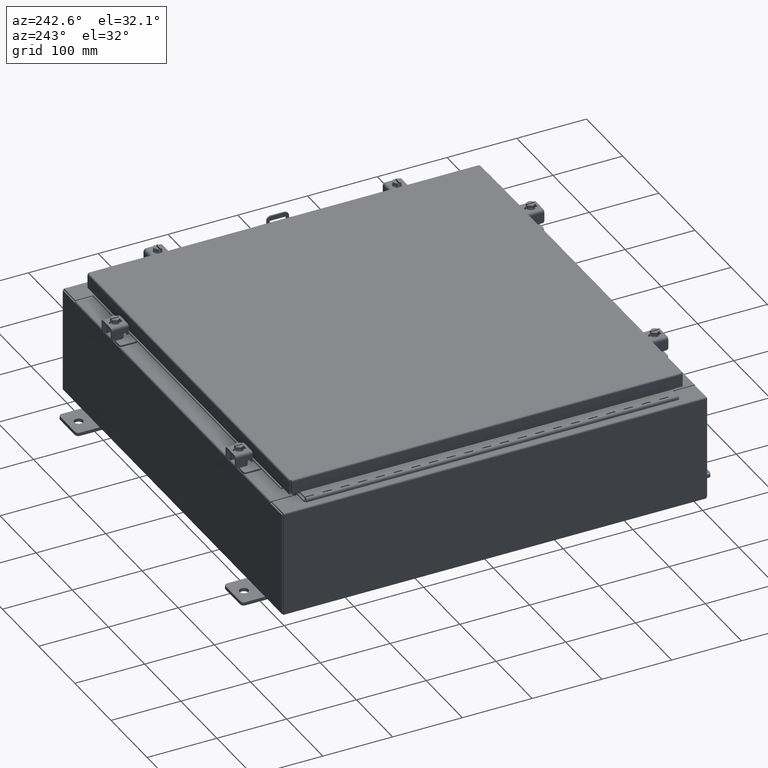
[diagram: clean part render]
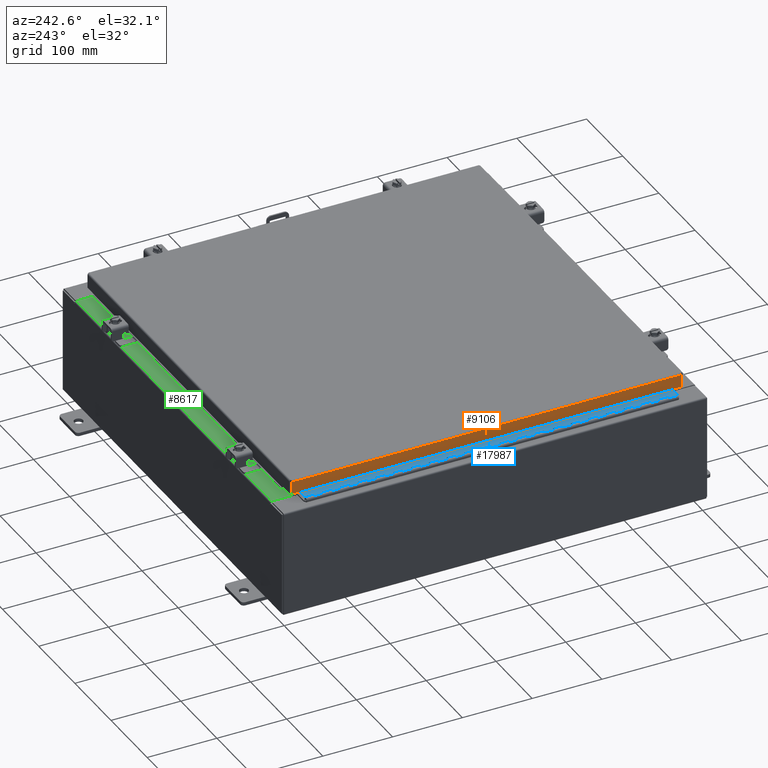
[diagram: same view with three faces highlighted in distinct colors, each labeled with its STEP entity id]
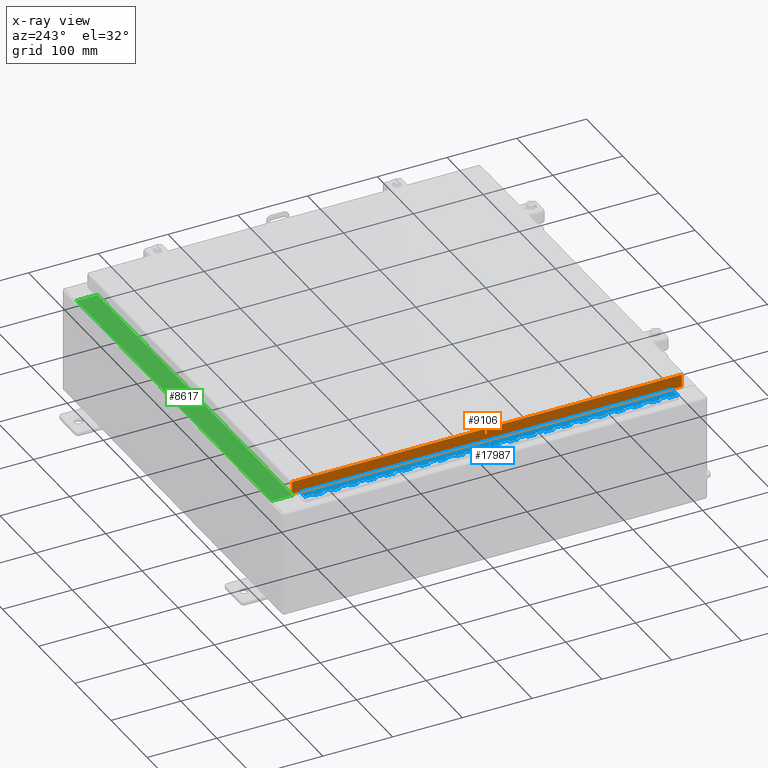
[diagram: x-ray of the same camera — body ghosted, the three highlighted faces saturated]
A machine part, auxiliary view with three faces highlighted in distinct colors.
The next image is the same camera in x-ray (body ghosted, the three faces saturated) — at least one of them is partly hidden behind the body in this view.
Their STEP definitions:

[orange] entity #9106 — the highlighted planar face has unit normal (1, 0, -0).
#335 = CARTESIAN_POINT ( 'NONE',  ( -11.07800000000000300, -11.00515786437627200, -0.08769999999999500400 ) ) ;
#999 = CARTESIAN_POINT ( 'NONE',  ( -11.07800000000000800, 11.00515786437626900, -0.7949999999999969300 ) ) ;
#1531 = CARTESIAN_POINT ( 'NONE',  ( -11.07800000000000300, -1.091163226025345200E-015, 6.748483047969663100E-014 ) ) ;
#1851 = DIRECTION ( 'NONE',  ( -6.068244883885633100E-015, 6.982962677686265900E-015, -1.000000000000000000 ) ) ;
#4026 = CARTESIAN_POINT ( 'NONE',  ( -11.07800000000000700, -11.00515786437626700, -0.7949999999999997100 ) ) ;
#5813 = DIRECTION ( 'NONE',  ( -9.849821502304897400E-017, 1.000000000000000000, 1.231227687788112100E-016 ) ) ;
#6281 = DIRECTION ( 'NONE',  ( -6.068244883885633100E-015, 6.982962677686265900E-015, -1.000000000000000000 ) ) ;
#8064 = DIRECTION ( 'NONE',  ( 9.849821502304913400E-017, -1.000000000000000000, -9.849821502304897400E-017 ) ) ;
#8558 = FACE_OUTER_BOUND ( 'NONE', #24076, .T. ) ;
#9106 = ADVANCED_FACE ( 'NONE', ( #8558 ), #19033, .F. ) ;
#10430 = CARTESIAN_POINT ( 'NONE',  ( -11.07800000000000300, 11.00515786437626400, 1.443334371086815900E-013 ) ) ;
#11580 = DIRECTION ( 'NONE',  ( -6.068244883885633100E-015, 0.0000000000000000000, -1.000000000000000000 ) ) ;
#13244 = ORIENTED_EDGE ( 'NONE', *, *, #17402, .F. ) ;
#13972 = VECTOR ( 'NONE', #1851, 39.37007874015748100 ) ;
#14180 = VECTOR ( 'NONE', #6281, 39.37007874015748100 ) ;
#14310 = VERTEX_POINT ( 'NONE', #15210 ) ;
#14610 = VERTEX_POINT ( 'NONE', #4026 ) ;
#15210 = CARTESIAN_POINT ( 'NONE',  ( -11.07800000000000500, 11.00515786437626400, -0.08769999999999764100 ) ) ;
#16645 = VERTEX_POINT ( 'NONE', #999 ) ;
#17077 = VERTEX_POINT ( 'NONE', #335 ) ;
#17402 = EDGE_CURVE ( 'NONE', #17077, #14610, #19856, .T. ) ;
#18306 = CARTESIAN_POINT ( 'NONE',  ( -11.07800000000000700, -11.09400000000000100, -0.7949999999999997100 ) ) ;
#18757 = LINE ( 'NONE', #18306, #31744 ) ;
#18768 = AXIS2_PLACEMENT_3D ( 'NONE', #1531, #26561, #11580 ) ;
#18994 = LINE ( 'NONE', #23048, #26416 ) ;
#19033 = PLANE ( 'NONE',  #18768 ) ;
#19561 = ORIENTED_EDGE ( 'NONE', *, *, #23461, .F. ) ;
#19856 = LINE ( 'NONE', #31950, #13972 ) ;
#20308 = ORIENTED_EDGE ( 'NONE', *, *, #27433, .F. ) ;
#23048 = CARTESIAN_POINT ( 'NONE',  ( -11.07800000000000300, -11.09400000000000100, -0.08769999999999982000 ) ) ;
#23461 = EDGE_CURVE ( 'NONE', #14310, #17077, #18994, .T. ) ;
#24076 = EDGE_LOOP ( 'NONE', ( #19561, #24638, #20308, #13244 ) ) ;
#24638 = ORIENTED_EDGE ( 'NONE', *, *, #25152, .T. ) ;
#25152 = EDGE_CURVE ( 'NONE', #14310, #16645, #28271, .T. ) ;
#26416 = VECTOR ( 'NONE', #8064, 39.37007874015748100 ) ;
#26561 = DIRECTION ( 'NONE',  ( 1.000000000000000000, 9.849821502304972600E-017, -6.068244883885633100E-015 ) ) ;
#27433 = EDGE_CURVE ( 'NONE', #14610, #16645, #18757, .T. ) ;
#28271 = LINE ( 'NONE', #10430, #14180 ) ;
#31744 = VECTOR ( 'NONE', #5813, 39.37007874015748100 ) ;
#31950 = CARTESIAN_POINT ( 'NONE',  ( -11.07800000000000300, -11.00515786437627100, -0.07469999999999954500 ) ) ;

[blue] entity #17987 — the highlighted planar face has unit normal (-0, -0, 1).
#44 = VERTEX_POINT ( 'NONE', #5451 ) ;
#76 = LINE ( 'NONE', #9133, #25145 ) ;
#164 = LINE ( 'NONE', #32493, #25996 ) ;
#201 = CARTESIAN_POINT ( 'NONE',  ( -0.6869999999999978300, 0.6754999999999996600, -19.50000000000000000 ) ) ;
#244 = EDGE_CURVE ( 'NONE', #11918, #31422, #661, .T. ) ;
#291 = CARTESIAN_POINT ( 'NONE',  ( -0.6869999999999978300, 0.6754999999999996600, -21.00000000000000000 ) ) ;
#313 = DIRECTION ( 'NONE',  ( 3.389037039080723100E-015, 1.000000000000000000, -0.0000000000000000000 ) ) ;
#322 = LINE ( 'NONE', #22404, #13647 ) ;
#379 = ORIENTED_EDGE ( 'NONE', *, *, #28563, .F. ) ;
#388 = VERTEX_POINT ( 'NONE', #27561 ) ;
#391 = LINE ( 'NONE', #2809, #6255 ) ;
#403 = CARTESIAN_POINT ( 'NONE',  ( -0.6869999999999978300, 0.6754999999999996600, -16.00000000000000000 ) ) ;
#439 = EDGE_CURVE ( 'NONE', #31021, #30501, #14347, .T. ) ;
#498 = VECTOR ( 'NONE', #16014, 39.37007874015748100 ) ;
#539 = CARTESIAN_POINT ( 'NONE',  ( -0.6869999999999982800, 0.5504999999999997700, -17.00000000000000000 ) ) ;
#574 = CARTESIAN_POINT ( 'NONE',  ( -0.6869999999999973900, 0.8004999999999995500, -2.000000000000000000 ) ) ;
#605 = LINE ( 'NONE', #8419, #26444 ) ;
#607 = VECTOR ( 'NONE', #22102, 39.37007874015748100 ) ;
#661 = LINE ( 'NONE', #24135, #19864 ) ;
#664 = CARTESIAN_POINT ( 'NONE',  ( -0.6869999999999978300, 0.6754999999999996600, -11.50000000000000000 ) ) ;
#686 = CARTESIAN_POINT ( 'NONE',  ( -0.6869999999999978300, 0.6754999999999996600, -20.50000000000000400 ) ) ;
#765 = VECTOR ( 'NONE', #10924, 39.37007874015748100 ) ;
#833 = EDGE_CURVE ( 'NONE', #10746, #7977, #28423, .T. ) ;
#844 = DIRECTION ( 'NONE',  ( 0.0000000000000000000, 0.0000000000000000000, 1.000000000000000000 ) ) ;
#929 = EDGE_CURVE ( 'NONE', #22496, #10595, #31958, .T. ) ;
#1075 = ORIENTED_EDGE ( 'NONE', *, *, #24967, .F. ) ;
#1080 = VECTOR ( 'NONE', #18418, 39.37007874015748100 ) ;
#1086 = VERTEX_POINT ( 'NONE', #2849 ) ;
#1181 = LINE ( 'NONE', #7744, #27009 ) ;
#1193 = DIRECTION ( 'NONE',  ( -3.389037039080723100E-015, -1.000000000000000000, 0.0000000000000000000 ) ) ;
#1200 = CARTESIAN_POINT ( 'NONE',  ( -0.6869999999999978300, 0.6754999999999996600, -21.00000000000000000 ) ) ;
#1372 = VECTOR ( 'NONE', #27779, 39.37007874015748100 ) ;
#1476 = CARTESIAN_POINT ( 'NONE',  ( -0.6869999999999973900, 0.8004999999999995500, -7.499999999999999100 ) ) ;
#1505 = CARTESIAN_POINT ( 'NONE',  ( -0.6869999999999982800, 0.5504999999999997700, -12.49999999999999800 ) ) ;
#1510 = DIRECTION ( 'NONE',  ( -3.389037039080723100E-015, -1.000000000000000000, 0.0000000000000000000 ) ) ;
#1513 = ORIENTED_EDGE ( 'NONE', *, *, #6257, .T. ) ;
#1519 = LINE ( 'NONE', #22452, #20683 ) ;
#1536 = CARTESIAN_POINT ( 'NONE',  ( -0.6869999999999978300, 0.6754999999999996600, 0.0000000000000000000 ) ) ;
#1686 = ORIENTED_EDGE ( 'NONE', *, *, #19822, .F. ) ;
#1689 = CARTESIAN_POINT ( 'NONE',  ( -0.6869999999999982800, 0.5504999999999997700, -11.50000000000000000 ) ) ;
#1833 = VERTEX_POINT ( 'NONE', #10960 ) ;
#1927 = CARTESIAN_POINT ( 'NONE',  ( -0.6869999999999973900, 0.8004999999999995500, -4.500000000000000000 ) ) ;
#1936 = EDGE_CURVE ( 'NONE', #16922, #24133, #19148, .T. ) ;
#2001 = LINE ( 'NONE', #28508, #21181 ) ;
#2043 = VECTOR ( 'NONE', #14987, 39.37007874015748100 ) ;
#2123 = EDGE_CURVE ( 'NONE', #9810, #20630, #322, .T. ) ;
#2167 = LINE ( 'NONE', #3950, #28001 ) ;
#2174 = VERTEX_POINT ( 'NONE', #17589 ) ;
#2279 = CARTESIAN_POINT ( 'NONE',  ( -0.6869999999999982800, 0.5504999999999997700, -15.50000000000000000 ) ) ;
#2341 = ORIENTED_EDGE ( 'NONE', *, *, #19540, .F. ) ;
#2361 = CARTESIAN_POINT ( 'NONE',  ( -0.6869999999999982800, 0.5504999999999997700, -13.50000000000000000 ) ) ;
#2373 = ORIENTED_EDGE ( 'NONE', *, *, #31339, .T. ) ;
#2494 = ORIENTED_EDGE ( 'NONE', *, *, #30972, .F. ) ;
#2577 = VECTOR ( 'NONE', #15552, 39.37007874015748100 ) ;
#2586 = VERTEX_POINT ( 'NONE', #17311 ) ;
#2603 = EDGE_CURVE ( 'NONE', #6872, #24432, #13612, .T. ) ;
#2639 = DIRECTION ( 'NONE',  ( 0.0000000000000000000, -0.0000000000000000000, -1.000000000000000000 ) ) ;
#2668 = ORIENTED_EDGE ( 'NONE', *, *, #1936, .F. ) ;
#2733 = EDGE_CURVE ( 'NONE', #9308, #30383, #30451, .T. ) ;
#2772 = ORIENTED_EDGE ( 'NONE', *, *, #17967, .F. ) ;
#2809 = CARTESIAN_POINT ( 'NONE',  ( -0.6869999999999973900, 0.8004999999999995500, -14.00000000000000000 ) ) ;
#2817 = DIRECTION ( 'NONE',  ( -3.389037039080723100E-015, -1.000000000000000000, 0.0000000000000000000 ) ) ;
#2849 = CARTESIAN_POINT ( 'NONE',  ( -0.6869999999999982800, 0.5504999999999997700, -20.00000000000000000 ) ) ;
#2923 = VERTEX_POINT ( 'NONE', #14227 ) ;
#2936 = CARTESIAN_POINT ( 'NONE',  ( -0.6869999999999978300, 0.6754999999999996600, -14.49999999999999800 ) ) ;
#2946 = VECTOR ( 'NONE', #16437, 39.37007874015748100 ) ;
#2988 = ORIENTED_EDGE ( 'NONE', *, *, #15606, .T. ) ;
#3032 = VECTOR ( 'NONE', #29751, 39.37007874015748100 ) ;
#3092 = VECTOR ( 'NONE', #15539, 39.37007874015748100 ) ;
#3200 = VERTEX_POINT ( 'NONE', #32455 ) ;
#3317 = DIRECTION ( 'NONE',  ( -3.389037039080723100E-015, -1.000000000000000000, 0.0000000000000000000 ) ) ;
#3342 = CARTESIAN_POINT ( 'NONE',  ( -0.6869999999999982800, 0.5504999999999997700, -3.500000000000000000 ) ) ;
#3407 = ORIENTED_EDGE ( 'NONE', *, *, #12902, .T. ) ;
#3507 = VECTOR ( 'NONE', #19879, 39.37007874015748100 ) ;
#3572 = VERTEX_POINT ( 'NONE', #13187 ) ;
#3661 = EDGE_CURVE ( 'NONE', #31176, #8222, #29592, .T. ) ;
#3730 = EDGE_CURVE ( 'NONE', #10746, #28555, #28809, .T. ) ;
#3815 = CARTESIAN_POINT ( 'NONE',  ( -0.6869999999999982800, 0.5504999999999997700, -19.50000000000000000 ) ) ;
#3847 = DIRECTION ( 'NONE',  ( 3.389037039080723100E-015, 1.000000000000000000, -0.0000000000000000000 ) ) ;
#3950 = CARTESIAN_POINT ( 'NONE',  ( -0.6869999999999973900, 0.8004999999999995500, -19.00000000000000000 ) ) ;
#4054 = VECTOR ( 'NONE', #22769, 39.37007874015748100 ) ;
#4058 = AXIS2_PLACEMENT_3D ( 'NONE', #27184, #12224, #29732 ) ;
#4062 = LINE ( 'NONE', #6371, #23207 ) ;
#4091 = VERTEX_POINT ( 'NONE', #14482 ) ;
#4111 = VECTOR ( 'NONE', #844, 39.37007874015748100 ) ;
#4153 = FACE_OUTER_BOUND ( 'NONE', #23342, .T. ) ;
#4272 = DIRECTION ( 'NONE',  ( 0.0000000000000000000, -0.0000000000000000000, -1.000000000000000000 ) ) ;
#4276 = LINE ( 'NONE', #31194, #30115 ) ;
#4289 = CARTESIAN_POINT ( 'NONE',  ( -0.6869999999999973900, 0.8004999999999995500, -11.99999999999999800 ) ) ;
#4322 = EDGE_CURVE ( 'NONE', #30985, #8739, #11994, .T. ) ;
#4487 = CARTESIAN_POINT ( 'NONE',  ( -0.6869999999999978300, 0.6754999999999996600, -17.50000000000000000 ) ) ;
#4498 = LINE ( 'NONE', #13275, #10384 ) ;
#4499 = ORIENTED_EDGE ( 'NONE', *, *, #16404, .F. ) ;
#4500 = VECTOR ( 'NONE', #7205, 39.37007874015748100 ) ;
#4590 = DIRECTION ( 'NONE',  ( 0.0000000000000000000, -0.0000000000000000000, -1.000000000000000000 ) ) ;
#4685 = VECTOR ( 'NONE', #26637, 39.37007874015748100 ) ;
#4705 = CARTESIAN_POINT ( 'NONE',  ( -0.6869999999999978300, 0.6754999999999996600, -21.00000000000000000 ) ) ;
#4776 = CARTESIAN_POINT ( 'NONE',  ( -0.6869999999999973900, 0.8004999999999995500, -19.50000000000000000 ) ) ;
#4811 = CARTESIAN_POINT ( 'NONE',  ( -0.6869999999999978300, 0.6754999999999996600, -7.000000000000000000 ) ) ;
#4854 = EDGE_CURVE ( 'NONE', #22666, #6263, #4498, .T. ) ;
#4890 = LINE ( 'NONE', #29203, #30730 ) ;
#4891 = CARTESIAN_POINT ( 'NONE',  ( -0.6869999999999982800, 0.5504999999999997700, -11.00000000000000000 ) ) ;
#4985 = ORIENTED_EDGE ( 'NONE', *, *, #27723, .T. ) ;
#5043 = CARTESIAN_POINT ( 'NONE',  ( -0.6870000000000022800, -0.6245000000000003900, 0.0000000000000000000 ) ) ;
#5061 = VERTEX_POINT ( 'NONE', #10190 ) ;
#5083 = LINE ( 'NONE', #1200, #24258 ) ;
#5132 = VERTEX_POINT ( 'NONE', #2936 ) ;
#5200 = DIRECTION ( 'NONE',  ( 3.389037039080723100E-015, 1.000000000000000000, -0.0000000000000000000 ) ) ;
#5214 = CARTESIAN_POINT ( 'NONE',  ( -0.6869999999999978300, 0.6754999999999996600, -21.00000000000000000 ) ) ;
#5292 = VECTOR ( 'NONE', #28086, 39.37007874015748100 ) ;
#5451 = CARTESIAN_POINT ( 'NONE',  ( -0.6869999999999978300, 0.6754999999999996600, -8.000000000000000000 ) ) ;
#5453 = LINE ( 'NONE', #9142, #4685 ) ;
#5642 = EDGE_CURVE ( 'NONE', #16805, #12355, #7579, .T. ) ;
#5675 = VECTOR ( 'NONE', #26469, 39.37007874015748100 ) ;
#5860 = ORIENTED_EDGE ( 'NONE', *, *, #23531, .T. ) ;
#5870 = LINE ( 'NONE', #29521, #24283 ) ;
#5952 = ORIENTED_EDGE ( 'NONE', *, *, #30469, .T. ) ;
#5992 = LINE ( 'NONE', #27898, #25967 ) ;
#6005 = ORIENTED_EDGE ( 'NONE', *, *, #28778, .F. ) ;
#6091 = VECTOR ( 'NONE', #6870, 39.37007874015748100 ) ;
#6096 = EDGE_CURVE ( 'NONE', #10595, #2586, #13423, .T. ) ;
#6218 = ORIENTED_EDGE ( 'NONE', *, *, #25221, .F. ) ;
#6249 = ORIENTED_EDGE ( 'NONE', *, *, #2123, .F. ) ;
#6255 = VECTOR ( 'NONE', #20322, 39.37007874015748100 ) ;
#6257 = EDGE_CURVE ( 'NONE', #5061, #3200, #28693, .T. ) ;
#6263 = VERTEX_POINT ( 'NONE', #29669 ) ;
#6371 = CARTESIAN_POINT ( 'NONE',  ( -0.6869999999999982800, 0.5504999999999997700, -8.500000000000000000 ) ) ;
#6380 = ORIENTED_EDGE ( 'NONE', *, *, #26415, .F. ) ;
#6396 = VERTEX_POINT ( 'NONE', #201 ) ;
#6403 = DIRECTION ( 'NONE',  ( 0.0000000000000000000, -0.0000000000000000000, -1.000000000000000000 ) ) ;
#6408 = EDGE_CURVE ( 'NONE', #17351, #16855, #11444, .T. ) ;
#6414 = VECTOR ( 'NONE', #6403, 39.37007874015748100 ) ;
#6475 = LINE ( 'NONE', #17224, #607 ) ;
#6542 = VECTOR ( 'NONE', #17809, 39.37007874015748100 ) ;
#6543 = VERTEX_POINT ( 'NONE', #10710 ) ;
#6615 = CARTESIAN_POINT ( 'NONE',  ( -0.6869999999999973900, 0.8004999999999995500, -4.000000000000000000 ) ) ;
#6655 = CARTESIAN_POINT ( 'NONE',  ( -0.6869999999999978300, 0.6754999999999996600, -12.49999999999999800 ) ) ;
#6696 = CARTESIAN_POINT ( 'NONE',  ( -0.6869999999999978300, 0.6754999999999996600, -16.50000000000000000 ) ) ;
#6832 = VERTEX_POINT ( 'NONE', #19245 ) ;
#6870 = DIRECTION ( 'NONE',  ( 3.389037039080723100E-015, 1.000000000000000000, -0.0000000000000000000 ) ) ;
#6872 = VERTEX_POINT ( 'NONE', #31829 ) ;
#6982 = CARTESIAN_POINT ( 'NONE',  ( -0.6869999999999978300, 0.6754999999999996600, -20.00000000000000000 ) ) ;
#7035 = DIRECTION ( 'NONE',  ( 0.0000000000000000000, 0.0000000000000000000, 1.000000000000000000 ) ) ;
#7116 = VECTOR ( 'NONE', #15360, 39.37007874015748100 ) ;
#7205 = DIRECTION ( 'NONE',  ( 0.0000000000000000000, 0.0000000000000000000, 1.000000000000000000 ) ) ;
#7216 = DIRECTION ( 'NONE',  ( -3.389037039080723100E-015, -1.000000000000000000, 0.0000000000000000000 ) ) ;
#7257 = EDGE_CURVE ( 'NONE', #23625, #12623, #2001, .T. ) ;
#7343 = CARTESIAN_POINT ( 'NONE',  ( -0.6869999999999978300, 0.6754999999999996600, -2.999999999999999600 ) ) ;
#7423 = LINE ( 'NONE', #23369, #765 ) ;
#7425 = VECTOR ( 'NONE', #1510, 39.37007874015748100 ) ;
#7513 = CARTESIAN_POINT ( 'NONE',  ( -0.6869999999999978300, 0.6754999999999996600, -11.00000000000000000 ) ) ;
#7579 = LINE ( 'NONE', #30171, #20119 ) ;
#7600 = VERTEX_POINT ( 'NONE', #17333 ) ;
#7624 = CARTESIAN_POINT ( 'NONE',  ( -0.6869999999999978300, 0.6754999999999996600, -21.00000000000000000 ) ) ;
#7642 = CARTESIAN_POINT ( 'NONE',  ( -0.6869999999999978300, 0.6754999999999996600, -6.000000000000000900 ) ) ;
#7696 = VECTOR ( 'NONE', #20428, 39.37007874015748100 ) ;
#7744 = CARTESIAN_POINT ( 'NONE',  ( -0.6869999999999982800, 0.5504999999999997700, -9.500000000000000000 ) ) ;
#7818 = CARTESIAN_POINT ( 'NONE',  ( -0.6869999999999982800, 0.5504999999999997700, -8.000000000000000000 ) ) ;
#7819 = VECTOR ( 'NONE', #15183, 39.37007874015748100 ) ;
#7822 = LINE ( 'NONE', #9408, #21896 ) ;
#7863 = CARTESIAN_POINT ( 'NONE',  ( -0.6869999999999978300, 0.6754999999999996600, -2.000000000000000000 ) ) ;
#7977 = VERTEX_POINT ( 'NONE', #21329 ) ;
#8023 = LINE ( 'NONE', #5214, #1372 ) ;
#8173 = ORIENTED_EDGE ( 'NONE', *, *, #27351, .F. ) ;
#8222 = VERTEX_POINT ( 'NONE', #7642 ) ;
#8345 = CARTESIAN_POINT ( 'NONE',  ( -0.6869999999999982800, 0.5504999999999997700, -16.00000000000000000 ) ) ;
#8379 = VERTEX_POINT ( 'NONE', #18359 ) ;
#8386 = EDGE_CURVE ( 'NONE', #5132, #22666, #7423, .T. ) ;
#8419 = CARTESIAN_POINT ( 'NONE',  ( -0.6869999999999978300, 0.6754999999999996600, -21.00000000000000000 ) ) ;
#8466 = LINE ( 'NONE', #30199, #14334 ) ;
#8620 = VERTEX_POINT ( 'NONE', #4487 ) ;
#8704 = LINE ( 'NONE', #24955, #2043 ) ;
#8739 = VERTEX_POINT ( 'NONE', #17535 ) ;
#8837 = EDGE_CURVE ( 'NONE', #26875, #26968, #15627, .T. ) ;
#8857 = EDGE_CURVE ( 'NONE', #6832, #12166, #28141, .T. ) ;
#8979 = VECTOR ( 'NONE', #22954, 39.37007874015748100 ) ;
#8989 = CARTESIAN_POINT ( 'NONE',  ( -0.6869999999999982800, 0.5504999999999997700, -20.50000000000000400 ) ) ;
#9013 = EDGE_CURVE ( 'NONE', #6832, #2174, #4276, .T. ) ;
#9133 = CARTESIAN_POINT ( 'NONE',  ( -0.6869999999999973900, 0.8004999999999995500, -17.50000000000000000 ) ) ;
#9142 = CARTESIAN_POINT ( 'NONE',  ( -0.6869999999999978300, 0.6754999999999996600, -21.00000000000000000 ) ) ;
#9239 = LINE ( 'NONE', #28015, #2577 ) ;
#9250 = CARTESIAN_POINT ( 'NONE',  ( -0.6869999999999982800, 0.5504999999999997700, -5.000000000000000000 ) ) ;
#9254 = CARTESIAN_POINT ( 'NONE',  ( -0.6869999999999982800, 0.5504999999999997700, -13.50000000000000000 ) ) ;
#9267 = CARTESIAN_POINT ( 'NONE',  ( -0.6869999999999978300, 0.6754999999999996600, -14.99999999999999800 ) ) ;
#9271 = EDGE_CURVE ( 'NONE', #388, #31021, #24252, .T. ) ;
#9308 = VERTEX_POINT ( 'NONE', #4891 ) ;
#9316 = ORIENTED_EDGE ( 'NONE', *, *, #3730, .F. ) ;
#9393 = EDGE_CURVE ( 'NONE', #13860, #30435, #27781, .T. ) ;
#9408 = CARTESIAN_POINT ( 'NONE',  ( -0.6869999999999973900, 0.8004999999999995500, -14.99999999999999800 ) ) ;
#9414 = CARTESIAN_POINT ( 'NONE',  ( -0.6869999999999978300, 0.6754999999999996600, -14.00000000000000000 ) ) ;
#9443 = DIRECTION ( 'NONE',  ( 0.0000000000000000000, 0.0000000000000000000, 1.000000000000000000 ) ) ;
#9536 = ORIENTED_EDGE ( 'NONE', *, *, #6096, .F. ) ;
#9708 = ORIENTED_EDGE ( 'NONE', *, *, #18726, .T. ) ;
#9716 = PLANE ( 'NONE',  #4058 ) ;
#9810 = VERTEX_POINT ( 'NONE', #1689 ) ;
#9939 = VERTEX_POINT ( 'NONE', #19648 ) ;
#10083 = VERTEX_POINT ( 'NONE', #26121 ) ;
#10089 = VECTOR ( 'NONE', #7035, 39.37007874015748100 ) ;
#10168 = CARTESIAN_POINT ( 'NONE',  ( -0.6869999999999978300, 0.6754999999999996600, -5.000000000000000000 ) ) ;
#10170 = ORIENTED_EDGE ( 'NONE', *, *, #18408, .F. ) ;
#10190 = CARTESIAN_POINT ( 'NONE',  ( -0.6869999999999998300, 0.07549999999999991400, -21.00000000000000000 ) ) ;
#10223 = EDGE_CURVE ( 'NONE', #31176, #16805, #19130, .T. ) ;
#10305 = CARTESIAN_POINT ( 'NONE',  ( -0.6869999999999978300, 0.6754999999999996600, -1.000000000000000000 ) ) ;
#10322 = EDGE_CURVE ( 'NONE', #24432, #1833, #23395, .T. ) ;
#10384 = VECTOR ( 'NONE', #30770, 39.37007874015748100 ) ;
#10469 = ORIENTED_EDGE ( 'NONE', *, *, #10322, .F. ) ;
#10493 = LINE ( 'NONE', #17288, #3032 ) ;
#10500 = CARTESIAN_POINT ( 'NONE',  ( -0.6869999999999978300, 0.6754999999999996600, -8.500000000000000000 ) ) ;
#10508 = DIRECTION ( 'NONE',  ( 0.0000000000000000000, -0.0000000000000000000, -1.000000000000000000 ) ) ;
#10572 = CARTESIAN_POINT ( 'NONE',  ( -0.6869999999999982800, 0.5504999999999997700, -17.50000000000000000 ) ) ;
#10595 = VERTEX_POINT ( 'NONE', #28066 ) ;
#10610 = VERTEX_POINT ( 'NONE', #30698 ) ;
#10710 = CARTESIAN_POINT ( 'NONE',  ( -0.6869999999999982800, 0.5504999999999997700, -14.00000000000000000 ) ) ;
#10722 = CARTESIAN_POINT ( 'NONE',  ( -0.6869999999999978300, 0.6754999999999996600, -0.5000000000000000000 ) ) ;
#10746 = VERTEX_POINT ( 'NONE', #19227 ) ;
#10812 = CARTESIAN_POINT ( 'NONE',  ( -0.6869999999999982800, 0.5504999999999997700, -0.5000000000000000000 ) ) ;
#10822 = VECTOR ( 'NONE', #28375, 39.37007874015748100 ) ;
#10924 = DIRECTION ( 'NONE',  ( -3.389037039080723100E-015, -1.000000000000000000, 0.0000000000000000000 ) ) ;
#10960 = CARTESIAN_POINT ( 'NONE',  ( -0.6869999999999982800, 0.5504999999999997700, -19.00000000000000000 ) ) ;
#10980 = CARTESIAN_POINT ( 'NONE',  ( -0.6869999999999982800, 0.5504999999999997700, -1.000000000000000000 ) ) ;
#10985 = CARTESIAN_POINT ( 'NONE',  ( -0.6869999999999982800, 0.5504999999999997700, -7.499999999999999100 ) ) ;
#11114 = ORIENTED_EDGE ( 'NONE', *, *, #30310, .F. ) ;
#11241 = CARTESIAN_POINT ( 'NONE',  ( -0.6869999999999978300, 0.6754999999999996600, -3.500000000000000000 ) ) ;
#11310 = ORIENTED_EDGE ( 'NONE', *, *, #833, .T. ) ;
#11415 = DIRECTION ( 'NONE',  ( 0.0000000000000000000, -0.0000000000000000000, -1.000000000000000000 ) ) ;
#11444 = LINE ( 'NONE', #17726, #17337 ) ;
#11462 = ORIENTED_EDGE ( 'NONE', *, *, #7257, .F. ) ;
#11526 = ORIENTED_EDGE ( 'NONE', *, *, #32155, .F. ) ;
#11605 = ORIENTED_EDGE ( 'NONE', *, *, #31271, .F. ) ;
#11693 = EDGE_CURVE ( 'NONE', #11973, #13193, #6475, .T. ) ;
#11754 = DIRECTION ( 'NONE',  ( -3.389037039080723100E-015, -1.000000000000000000, 0.0000000000000000000 ) ) ;
#11763 = VERTEX_POINT ( 'NONE', #7343 ) ;
#11788 = EDGE_CURVE ( 'NONE', #24867, #13193, #30765, .T. ) ;
#11818 = CARTESIAN_POINT ( 'NONE',  ( -0.6869999999999973900, 0.8004999999999995500, -10.00000000000000000 ) ) ;
#11845 = VERTEX_POINT ( 'NONE', #20262 ) ;
#11847 = VECTOR ( 'NONE', #17310, 39.37007874015748100 ) ;
#11918 = VERTEX_POINT ( 'NONE', #539 ) ;
#11957 = LINE ( 'NONE', #4705, #4500 ) ;
#11973 = VERTEX_POINT ( 'NONE', #10722 ) ;
#11994 = LINE ( 'NONE', #18324, #31186 ) ;
#12088 = CARTESIAN_POINT ( 'NONE',  ( -0.6869999999999978300, 0.6754999999999996600, -21.00000000000000000 ) ) ;
#12166 = VERTEX_POINT ( 'NONE', #28890 ) ;
#12223 = EDGE_CURVE ( 'NONE', #12623, #24881, #4890, .T. ) ;
#12224 = DIRECTION ( 'NONE',  ( 1.000000000000000000, -3.369016658928398200E-015, 0.0000000000000000000 ) ) ;
#12248 = CARTESIAN_POINT ( 'NONE',  ( -0.6869999999999982800, 0.5504999999999997700, -5.500000000000000000 ) ) ;
#12355 = VERTEX_POINT ( 'NONE', #29750 ) ;
#12359 = EDGE_CURVE ( 'NONE', #30985, #30435, #20918, .T. ) ;
#12415 = VECTOR ( 'NONE', #30687, 39.37007874015748100 ) ;
#12426 = EDGE_CURVE ( 'NONE', #17351, #26875, #164, .T. ) ;
#12482 = LINE ( 'NONE', #15652, #24986 ) ;
#12490 = LINE ( 'NONE', #17884, #31677 ) ;
#12623 = VERTEX_POINT ( 'NONE', #3342 ) ;
#12679 = CARTESIAN_POINT ( 'NONE',  ( -0.6869999999999973900, 0.8004999999999995500, -5.000000000000000000 ) ) ;
#12763 = CARTESIAN_POINT ( 'NONE',  ( -0.6869999999999973900, 0.8004999999999995500, -15.50000000000000000 ) ) ;
#12799 = LINE ( 'NONE', #24209, #31973 ) ;
#12810 = VECTOR ( 'NONE', #4590, 39.37007874015748100 ) ;
#12846 = VECTOR ( 'NONE', #20055, 39.37007874015748100 ) ;
#12902 = EDGE_CURVE ( 'NONE', #26354, #25094, #5992, .T. ) ;
#12974 = ORIENTED_EDGE ( 'NONE', *, *, #30245, .F. ) ;
#12978 = CARTESIAN_POINT ( 'NONE',  ( -0.6869999999999973900, 0.8004999999999995500, -13.50000000000000000 ) ) ;
#13039 = CARTESIAN_POINT ( 'NONE',  ( -0.6869999999999978300, 0.6754999999999996600, -21.00000000000000000 ) ) ;
#13187 = CARTESIAN_POINT ( 'NONE',  ( -0.6869999999999982800, 0.5504999999999997700, -20.50000000000000400 ) ) ;
#13192 = CARTESIAN_POINT ( 'NONE',  ( -0.6869999999999973900, 0.8004999999999995500, -2.500000000000000000 ) ) ;
#13193 = VERTEX_POINT ( 'NONE', #1536 ) ;
#13275 = CARTESIAN_POINT ( 'NONE',  ( -0.6869999999999982800, 0.5504999999999997700, -14.49999999999999800 ) ) ;
#13423 = LINE ( 'NONE', #21655, #19305 ) ;
#13473 = CARTESIAN_POINT ( 'NONE',  ( -0.6869999999999973900, 0.8004999999999995500, -9.000000000000000000 ) ) ;
#13612 = LINE ( 'NONE', #14024, #1080 ) ;
#13647 = VECTOR ( 'NONE', #22697, 39.37007874015748100 ) ;
#13860 = VERTEX_POINT ( 'NONE', #9250 ) ;
#13902 = CARTESIAN_POINT ( 'NONE',  ( -0.6869999999999982800, 0.5504999999999997700, -11.99999999999999800 ) ) ;
#13906 = CARTESIAN_POINT ( 'NONE',  ( -0.6869999999999982800, 0.5504999999999997700, -6.000000000000000900 ) ) ;
#13962 = ORIENTED_EDGE ( 'NONE', *, *, #18923, .F. ) ;
#14011 = ORIENTED_EDGE ( 'NONE', *, *, #31094, .T. ) ;
#14024 = CARTESIAN_POINT ( 'NONE',  ( -0.6869999999999973900, 0.8004999999999995500, -18.50000000000000000 ) ) ;
#14048 = VECTOR ( 'NONE', #10508, 39.37007874015748100 ) ;
#14095 = LINE ( 'NONE', #15310, #26610 ) ;
#14122 = VERTEX_POINT ( 'NONE', #7818 ) ;
#14196 = CARTESIAN_POINT ( 'NONE',  ( -0.6869999999999973900, 0.8004999999999995500, -6.499999999999999100 ) ) ;
#14210 = ORIENTED_EDGE ( 'NONE', *, *, #6408, .T. ) ;
#14227 = CARTESIAN_POINT ( 'NONE',  ( -0.6869999999999982800, 0.5504999999999997700, -16.50000000000000000 ) ) ;
#14270 = VECTOR ( 'NONE', #32260, 39.37007874015748100 ) ;
#14326 = ORIENTED_EDGE ( 'NONE', *, *, #929, .F. ) ;
#14334 = VECTOR ( 'NONE', #2817, 39.37007874015748100 ) ;
#14347 = LINE ( 'NONE', #18476, #26868 ) ;
#14436 = LINE ( 'NONE', #574, #20318 ) ;
#14448 = VERTEX_POINT ( 'NONE', #10812 ) ;
#14482 = CARTESIAN_POINT ( 'NONE',  ( -0.6869999999999982800, 0.5504999999999997700, -9.000000000000000000 ) ) ;
#14525 = DIRECTION ( 'NONE',  ( 0.0000000000000000000, -0.0000000000000000000, -1.000000000000000000 ) ) ;
#14530 = CARTESIAN_POINT ( 'NONE',  ( -0.6869999999999978300, 0.6754999999999996600, -7.499999999999999100 ) ) ;
#14552 = VERTEX_POINT ( 'NONE', #3815 ) ;
#14563 = CARTESIAN_POINT ( 'NONE',  ( -0.6869999999999978300, 0.6754999999999996600, -11.99999999999999800 ) ) ;
#14583 = VECTOR ( 'NONE', #31864, 39.37007874015748100 ) ;
#14690 = ORIENTED_EDGE ( 'NONE', *, *, #24583, .F. ) ;
#14695 = ORIENTED_EDGE ( 'NONE', *, *, #9393, .F. ) ;
#14788 = ORIENTED_EDGE ( 'NONE', *, *, #20798, .F. ) ;
#14987 = DIRECTION ( 'NONE',  ( 3.389037039080723100E-015, 1.000000000000000000, -0.0000000000000000000 ) ) ;
#15183 = DIRECTION ( 'NONE',  ( 3.389037039080723100E-015, 1.000000000000000000, -0.0000000000000000000 ) ) ;
#15268 = DIRECTION ( 'NONE',  ( -3.389037039080723100E-015, -1.000000000000000000, 0.0000000000000000000 ) ) ;
#15310 = CARTESIAN_POINT ( 'NONE',  ( -0.6869999999999973900, 0.8004999999999995500, -8.500000000000000000 ) ) ;
#15360 = DIRECTION ( 'NONE',  ( 3.389037039080723100E-015, 1.000000000000000000, -0.0000000000000000000 ) ) ;
#15461 = DIRECTION ( 'NONE',  ( 3.389037039080723100E-015, 1.000000000000000000, -0.0000000000000000000 ) ) ;
#15539 = DIRECTION ( 'NONE',  ( 0.0000000000000000000, 0.0000000000000000000, 1.000000000000000000 ) ) ;
#15552 = DIRECTION ( 'NONE',  ( 0.0000000000000000000, 0.0000000000000000000, 1.000000000000000000 ) ) ;
#15595 = ORIENTED_EDGE ( 'NONE', *, *, #27479, .F. ) ;
#15606 = EDGE_CURVE ( 'NONE', #10083, #19296, #5083, .T. ) ;
#15627 = LINE ( 'NONE', #25481, #8979 ) ;
#15652 = CARTESIAN_POINT ( 'NONE',  ( -0.6869999999999973900, 0.8004999999999995500, -2.999999999999999600 ) ) ;
#15741 = EDGE_CURVE ( 'NONE', #6263, #23776, #7822, .T. ) ;
#15792 = CARTESIAN_POINT ( 'NONE',  ( -0.6869999999999973900, 0.8004999999999995500, -20.50000000000000400 ) ) ;
#15838 = CARTESIAN_POINT ( 'NONE',  ( -0.6869999999999978300, 0.6754999999999996600, -21.00000000000000000 ) ) ;
#15854 = ORIENTED_EDGE ( 'NONE', *, *, #23404, .T. ) ;
#15922 = CARTESIAN_POINT ( 'NONE',  ( -0.6869999999999973900, 0.8004999999999995500, -8.000000000000000000 ) ) ;
#16014 = DIRECTION ( 'NONE',  ( 3.389037039080723100E-015, 1.000000000000000000, -0.0000000000000000000 ) ) ;
#16184 = VERTEX_POINT ( 'NONE', #9254 ) ;
#16251 = ORIENTED_EDGE ( 'NONE', *, *, #16502, .F. ) ;
#16282 = LINE ( 'NONE', #31418, #2946 ) ;
#16359 = VECTOR ( 'NONE', #28692, 39.37007874015748100 ) ;
#16369 = ORIENTED_EDGE ( 'NONE', *, *, #8386, .F. ) ;
#16404 = EDGE_CURVE ( 'NONE', #26968, #24207, #1519, .T. ) ;
#16437 = DIRECTION ( 'NONE',  ( 0.0000000000000000000, -0.0000000000000000000, -1.000000000000000000 ) ) ;
#16502 = EDGE_CURVE ( 'NONE', #12355, #25094, #12490, .T. ) ;
#16512 = DIRECTION ( 'NONE',  ( 3.389037039080723100E-015, 1.000000000000000000, -0.0000000000000000000 ) ) ;
#16541 = VERTEX_POINT ( 'NONE', #686 ) ;
#16587 = CARTESIAN_POINT ( 'NONE',  ( -0.6869999999999978300, 0.6754999999999996600, -1.499999999999999800 ) ) ;
#16592 = ORIENTED_EDGE ( 'NONE', *, *, #20503, .F. ) ;
#16641 = VERTEX_POINT ( 'NONE', #10980 ) ;
#16805 = VERTEX_POINT ( 'NONE', #29237 ) ;
#16825 = LINE ( 'NONE', #12763, #29336 ) ;
#16855 = VERTEX_POINT ( 'NONE', #14563 ) ;
#16922 = VERTEX_POINT ( 'NONE', #32422 ) ;
#16971 = VERTEX_POINT ( 'NONE', #30009 ) ;
#16978 = ORIENTED_EDGE ( 'NONE', *, *, #5642, .F. ) ;
#17158 = DIRECTION ( 'NONE',  ( 3.389037039080723100E-015, 1.000000000000000000, -0.0000000000000000000 ) ) ;
#17204 = CARTESIAN_POINT ( 'NONE',  ( -0.6870000000000022800, -0.6245000000000003900, -21.00000000000000000 ) ) ;
#17224 = CARTESIAN_POINT ( 'NONE',  ( -0.6869999999999978300, 0.6754999999999996600, -21.00000000000000000 ) ) ;
#17288 = CARTESIAN_POINT ( 'NONE',  ( -0.6869999999999973900, 0.8004999999999995500, -0.5000000000000000000 ) ) ;
#17310 = DIRECTION ( 'NONE',  ( 3.389037039080723100E-015, 1.000000000000000000, -0.0000000000000000000 ) ) ;
#17311 = CARTESIAN_POINT ( 'NONE',  ( -0.6869999999999982800, 0.5504999999999997700, -2.000000000000000000 ) ) ;
#17333 = CARTESIAN_POINT ( 'NONE',  ( -0.6869999999999982800, 0.5504999999999997700, -10.00000000000000000 ) ) ;
#17337 = VECTOR ( 'NONE', #20245, 39.37007874015748100 ) ;
#17351 = VERTEX_POINT ( 'NONE', #6655 ) ;
#17372 = CARTESIAN_POINT ( 'NONE',  ( -0.6869999999999982800, 0.5504999999999997700, -2.999999999999999600 ) ) ;
#17440 = CARTESIAN_POINT ( 'NONE',  ( -0.6869999999999982800, 0.5504999999999997700, -18.50000000000000000 ) ) ;
#17535 = CARTESIAN_POINT ( 'NONE',  ( -0.6869999999999982800, 0.5504999999999997700, -5.500000000000000000 ) ) ;
#17589 = CARTESIAN_POINT ( 'NONE',  ( -0.6869999999999982800, 0.5504999999999997700, -9.500000000000000000 ) ) ;
#17594 = EDGE_CURVE ( 'NONE', #25717, #8222, #22555, .T. ) ;
#17649 = EDGE_CURVE ( 'NONE', #31748, #9810, #8466, .T. ) ;
#17671 = EDGE_CURVE ( 'NONE', #2923, #11918, #20988, .T. ) ;
#17683 = ORIENTED_EDGE ( 'NONE', *, *, #3661, .T. ) ;
#17726 = CARTESIAN_POINT ( 'NONE',  ( -0.6869999999999978300, 0.6754999999999996600, -21.00000000000000000 ) ) ;
#17803 = CARTESIAN_POINT ( 'NONE',  ( -0.6869999999999982800, 0.5504999999999997700, -4.500000000000000000 ) ) ;
#17809 = DIRECTION ( 'NONE',  ( 0.0000000000000000000, 0.0000000000000000000, 1.000000000000000000 ) ) ;
#17881 = CARTESIAN_POINT ( 'NONE',  ( -0.6869999999999973900, 0.8004999999999995500, -20.00000000000000000 ) ) ;
#17884 = CARTESIAN_POINT ( 'NONE',  ( -0.6869999999999973900, 0.8004999999999995500, -7.000000000000000000 ) ) ;
#17900 = LINE ( 'NONE', #15922, #23742 ) ;
#17933 = CARTESIAN_POINT ( 'NONE',  ( -0.6869999999999982800, 0.5504999999999997700, -16.50000000000000000 ) ) ;
#17967 = EDGE_CURVE ( 'NONE', #24881, #7977, #18239, .T. ) ;
#17987 = ADVANCED_FACE ( 'NONE', ( #4153 ), #9716, .T. ) ;
#18002 = LINE ( 'NONE', #29358, #29748 ) ;
#18071 = ORIENTED_EDGE ( 'NONE', *, *, #9013, .F. ) ;
#18099 = ORIENTED_EDGE ( 'NONE', *, *, #439, .F. ) ;
#18201 = CARTESIAN_POINT ( 'NONE',  ( -0.6869999999999982800, 0.5504999999999997700, -17.99999999999999600 ) ) ;
#18239 = LINE ( 'NONE', #6615, #19036 ) ;
#18291 = ORIENTED_EDGE ( 'NONE', *, *, #28980, .F. ) ;
#18311 = DIRECTION ( 'NONE',  ( -3.389037039080723100E-015, -1.000000000000000000, 0.0000000000000000000 ) ) ;
#18324 = CARTESIAN_POINT ( 'NONE',  ( -0.6869999999999973900, 0.8004999999999995500, -5.500000000000000000 ) ) ;
#18325 = CARTESIAN_POINT ( 'NONE',  ( -0.6869999999999978300, 0.6754999999999996600, -21.00000000000000000 ) ) ;
#18359 = CARTESIAN_POINT ( 'NONE',  ( -0.6869999999999982800, 0.5504999999999997700, -8.500000000000000000 ) ) ;
#18375 = LINE ( 'NONE', #22645, #25028 ) ;
#18408 = EDGE_CURVE ( 'NONE', #26354, #11845, #18663, .T. ) ;
#18418 = DIRECTION ( 'NONE',  ( -3.389037039080723100E-015, -1.000000000000000000, 0.0000000000000000000 ) ) ;
#18476 = CARTESIAN_POINT ( 'NONE',  ( -0.6869999999999973900, 0.8004999999999995500, -16.00000000000000000 ) ) ;
#18560 = VECTOR ( 'NONE', #27421, 39.37007874015748100 ) ;
#18663 = LINE ( 'NONE', #1476, #26076 ) ;
#18684 = VERTEX_POINT ( 'NONE', #10305 ) ;
#18726 = EDGE_CURVE ( 'NONE', #22496, #18684, #9239, .T. ) ;
#18737 = ORIENTED_EDGE ( 'NONE', *, *, #12426, .F. ) ;
#18739 = ORIENTED_EDGE ( 'NONE', *, *, #23094, .F. ) ;
#18854 = CARTESIAN_POINT ( 'NONE',  ( -0.6869999999999978300, 0.6754999999999996600, -13.50000000000000000 ) ) ;
#18923 = EDGE_CURVE ( 'NONE', #28555, #13860, #16282, .T. ) ;
#18952 = EDGE_CURVE ( 'NONE', #1833, #19559, #2167, .T. ) ;
#19036 = VECTOR ( 'NONE', #17158, 39.37007874015748100 ) ;
#19046 = VERTEX_POINT ( 'NONE', #9414 ) ;
#19130 = LINE ( 'NONE', #14196, #24989 ) ;
#19148 = LINE ( 'NONE', #10572, #14048 ) ;
#19227 = CARTESIAN_POINT ( 'NONE',  ( -0.6869999999999978300, 0.6754999999999996600, -4.500000000000000000 ) ) ;
#19245 = CARTESIAN_POINT ( 'NONE',  ( -0.6869999999999978300, 0.6754999999999996600, -9.500000000000000000 ) ) ;
#19296 = VERTEX_POINT ( 'NONE', #7863 ) ;
#19305 = VECTOR ( 'NONE', #24183, 39.37007874015748100 ) ;
#19438 = LINE ( 'NONE', #11818, #6091 ) ;
#19480 = ORIENTED_EDGE ( 'NONE', *, *, #31528, .F. ) ;
#19521 = ORIENTED_EDGE ( 'NONE', *, *, #2603, .F. ) ;
#19540 = EDGE_CURVE ( 'NONE', #9939, #9308, #19758, .T. ) ;
#19559 = VERTEX_POINT ( 'NONE', #26434 ) ;
#19609 = LINE ( 'NONE', #12248, #31359 ) ;
#19648 = CARTESIAN_POINT ( 'NONE',  ( -0.6869999999999982800, 0.5504999999999997700, -10.50000000000000000 ) ) ;
#19666 = LINE ( 'NONE', #17881, #7116 ) ;
#19758 = LINE ( 'NONE', #21410, #6414 ) ;
#19783 = DIRECTION ( 'NONE',  ( 0.0000000000000000000, -0.0000000000000000000, -1.000000000000000000 ) ) ;
#19786 = CARTESIAN_POINT ( 'NONE',  ( -0.6869999999999978300, 0.6754999999999996600, -21.00000000000000000 ) ) ;
#19822 = EDGE_CURVE ( 'NONE', #6396, #14552, #31888, .T. ) ;
#19863 = ORIENTED_EDGE ( 'NONE', *, *, #27925, .F. ) ;
#19864 = VECTOR ( 'NONE', #313, 39.37007874015748100 ) ;
#19879 = DIRECTION ( 'NONE',  ( 0.0000000000000000000, -0.0000000000000000000, -1.000000000000000000 ) ) ;
#20046 = DIRECTION ( 'NONE',  ( 3.369016658928398200E-015, 1.000000000000000000, 0.0000000000000000000 ) ) ;
#20055 = DIRECTION ( 'NONE',  ( 0.0000000000000000000, 0.0000000000000000000, 1.000000000000000000 ) ) ;
#20073 = DIRECTION ( 'NONE',  ( 3.389037039080723100E-015, 1.000000000000000000, -0.0000000000000000000 ) ) ;
#20119 = VECTOR ( 'NONE', #27629, 39.37007874015748100 ) ;
#20121 = ORIENTED_EDGE ( 'NONE', *, *, #28544, .F. ) ;
#20154 = EDGE_CURVE ( 'NONE', #8379, #4091, #4062, .T. ) ;
#20228 = CARTESIAN_POINT ( 'NONE',  ( -0.6869999999999973900, 0.8004999999999995500, -6.000000000000000900 ) ) ;
#20245 = DIRECTION ( 'NONE',  ( 0.0000000000000000000, 0.0000000000000000000, 1.000000000000000000 ) ) ;
#20262 = CARTESIAN_POINT ( 'NONE',  ( -0.6869999999999982800, 0.5504999999999997700, -7.499999999999999100 ) ) ;
#20318 = VECTOR ( 'NONE', #20599, 39.37007874015748100 ) ;
#20322 = DIRECTION ( 'NONE',  ( 3.389037039080723100E-015, 1.000000000000000000, -0.0000000000000000000 ) ) ;
#20428 = DIRECTION ( 'NONE',  ( 0.0000000000000000000, -0.0000000000000000000, -1.000000000000000000 ) ) ;
#20476 = LINE ( 'NONE', #13473, #498 ) ;
#20503 = EDGE_CURVE ( 'NONE', #4091, #12166, #20476, .T. ) ;
#20546 = ORIENTED_EDGE ( 'NONE', *, *, #23253, .T. ) ;
#20569 = VECTOR ( 'NONE', #7216, 39.37007874015748100 ) ;
#20599 = DIRECTION ( 'NONE',  ( 3.389037039080723100E-015, 1.000000000000000000, -0.0000000000000000000 ) ) ;
#20630 = VERTEX_POINT ( 'NONE', #13902 ) ;
#20683 = VECTOR ( 'NONE', #20073, 39.37007874015748100 ) ;
#20733 = ORIENTED_EDGE ( 'NONE', *, *, #26584, .F. ) ;
#20798 = EDGE_CURVE ( 'NONE', #24133, #16971, #24354, .T. ) ;
#20844 = EDGE_CURVE ( 'NONE', #16641, #18684, #8704, .T. ) ;
#20918 = LINE ( 'NONE', #19786, #14270 ) ;
#20961 = ORIENTED_EDGE ( 'NONE', *, *, #17671, .F. ) ;
#20967 = VECTOR ( 'NONE', #30083, 39.37007874015748100 ) ;
#20988 = LINE ( 'NONE', #17933, #7696 ) ;
#21130 = CARTESIAN_POINT ( 'NONE',  ( -0.6869999999999978300, 0.6754999999999996600, -10.00000000000000000 ) ) ;
#21181 = VECTOR ( 'NONE', #25957, 39.37007874015748100 ) ;
#21329 = CARTESIAN_POINT ( 'NONE',  ( -0.6869999999999978300, 0.6754999999999996600, -4.000000000000000000 ) ) ;
#21410 = CARTESIAN_POINT ( 'NONE',  ( -0.6869999999999982800, 0.5504999999999997700, -10.50000000000000000 ) ) ;
#21416 = ORIENTED_EDGE ( 'NONE', *, *, #20154, .F. ) ;
#21453 = CARTESIAN_POINT ( 'NONE',  ( -0.6869999999999982800, 0.5504999999999997700, -4.000000000000000000 ) ) ;
#21463 = VERTEX_POINT ( 'NONE', #17372 ) ;
#21488 = CARTESIAN_POINT ( 'NONE',  ( -0.6869999999999978300, 0.6754999999999996600, -15.50000000000000000 ) ) ;
#21655 = CARTESIAN_POINT ( 'NONE',  ( -0.6869999999999982800, 0.5504999999999997700, -1.499999999999999800 ) ) ;
#21656 = ORIENTED_EDGE ( 'NONE', *, *, #32086, .F. ) ;
#21778 = VECTOR ( 'NONE', #5200, 39.37007874015748100 ) ;
#21789 = ORIENTED_EDGE ( 'NONE', *, *, #4322, .F. ) ;
#21896 = VECTOR ( 'NONE', #24367, 39.37007874015748100 ) ;
#21923 = VERTEX_POINT ( 'NONE', #21488 ) ;
#21955 = VECTOR ( 'NONE', #22107, 39.37007874015748100 ) ;
#22014 = VECTOR ( 'NONE', #32185, 39.37007874015748100 ) ;
#22017 = LINE ( 'NONE', #4289, #14583 ) ;
#22054 = CARTESIAN_POINT ( 'NONE',  ( -0.6869999999999982800, 0.5504999999999997700, -18.50000000000000000 ) ) ;
#22102 = DIRECTION ( 'NONE',  ( 0.0000000000000000000, 0.0000000000000000000, 1.000000000000000000 ) ) ;
#22107 = DIRECTION ( 'NONE',  ( 0.0000000000000000000, 0.0000000000000000000, 1.000000000000000000 ) ) ;
#22235 = CARTESIAN_POINT ( 'NONE',  ( -0.6869999999999978300, 0.6754999999999996600, -17.00000000000000000 ) ) ;
#22356 = EDGE_CURVE ( 'NONE', #14122, #44, #17900, .T. ) ;
#22404 = CARTESIAN_POINT ( 'NONE',  ( -0.6869999999999982800, 0.5504999999999997700, -11.50000000000000000 ) ) ;
#22421 = LINE ( 'NONE', #12978, #4054 ) ;
#22452 = CARTESIAN_POINT ( 'NONE',  ( -0.6869999999999973900, 0.8004999999999995500, -12.99999999999999800 ) ) ;
#22496 = VERTEX_POINT ( 'NONE', #16587 ) ;
#22545 = VECTOR ( 'NONE', #28618, 39.37007874015748100 ) ;
#22555 = LINE ( 'NONE', #20228, #21778 ) ;
#22645 = CARTESIAN_POINT ( 'NONE',  ( -0.6869999999999982800, 0.5504999999999997700, -2.500000000000000000 ) ) ;
#22666 = VERTEX_POINT ( 'NONE', #32215 ) ;
#22697 = DIRECTION ( 'NONE',  ( 0.0000000000000000000, -0.0000000000000000000, -1.000000000000000000 ) ) ;
#22769 = DIRECTION ( 'NONE',  ( -3.389037039080723100E-015, -1.000000000000000000, 0.0000000000000000000 ) ) ;
#22902 = VECTOR ( 'NONE', #28301, 39.37007874015748100 ) ;
#22948 = EDGE_CURVE ( 'NONE', #25697, #24207, #605, .T. ) ;
#22954 = DIRECTION ( 'NONE',  ( 0.0000000000000000000, -0.0000000000000000000, -1.000000000000000000 ) ) ;
#23044 = LINE ( 'NONE', #15792, #28947 ) ;
#23094 = EDGE_CURVE ( 'NONE', #3572, #3200, #29194, .T. ) ;
#23108 = CARTESIAN_POINT ( 'NONE',  ( -0.6869999999999978300, 0.6754999999999996600, -21.00000000000000000 ) ) ;
#23150 = ORIENTED_EDGE ( 'NONE', *, *, #11788, .F. ) ;
#23207 = VECTOR ( 'NONE', #11415, 39.37007874015748100 ) ;
#23237 = ORIENTED_EDGE ( 'NONE', *, *, #12223, .F. ) ;
#23253 = EDGE_CURVE ( 'NONE', #32359, #44, #11957, .T. ) ;
#23257 = LINE ( 'NONE', #15838, #4111 ) ;
#23342 = EDGE_LOOP ( 'NONE', ( #19480, #1513, #18739, #25463, #25977, #27243, #11526, #1686, #5952, #31301, #10469, #19521, #2373, #14788, #2668, #6218, #5860, #27262, #20961, #6005, #26781, #18099, #25002, #29820, #14011, #23483, #29155, #16369, #26568, #379, #18291, #14690, #27152, #4499, #31028, #18737, #14210, #1075, #6249, #26375, #4985, #27740, #2341, #11605, #15854, #21656, #20121, #18071, #26527, #16592, #21416, #20733, #20546, #26100, #15595, #10170, #3407, #16251, #16978, #24796, #17683, #26114, #6380, #21789, #27770, #14695, #13962, #9316, #11310, #2772, #23237, #11462, #27451, #31378, #19863, #2494, #2988, #8173, #9536, #14326, #9708, #25764, #12974, #11114, #25162, #23150 ) ) ;
#23364 = LINE ( 'NONE', #12088, #10089 ) ;
#23369 = CARTESIAN_POINT ( 'NONE',  ( -0.6869999999999973900, 0.8004999999999995500, -14.49999999999999800 ) ) ;
#23395 = LINE ( 'NONE', #22054, #29296 ) ;
#23404 = EDGE_CURVE ( 'NONE', #26318, #24821, #8023, .T. ) ;
#23443 = CARTESIAN_POINT ( 'NONE',  ( -0.6869999999999978300, 0.6754999999999996600, -12.99999999999999800 ) ) ;
#23483 = ORIENTED_EDGE ( 'NONE', *, *, #15741, .F. ) ;
#23531 = EDGE_CURVE ( 'NONE', #8620, #31422, #23257, .T. ) ;
#23625 = VERTEX_POINT ( 'NONE', #11241 ) ;
#23742 = VECTOR ( 'NONE', #25958, 39.37007874015748100 ) ;
#23773 = VECTOR ( 'NONE', #14525, 39.37007874015748100 ) ;
#23776 = VERTEX_POINT ( 'NONE', #9267 ) ;
#23889 = CARTESIAN_POINT ( 'NONE',  ( -0.6869999999999978300, 0.6754999999999996600, -6.499999999999999100 ) ) ;
#24133 = VERTEX_POINT ( 'NONE', #18201 ) ;
#24135 = CARTESIAN_POINT ( 'NONE',  ( -0.6869999999999973900, 0.8004999999999995500, -17.00000000000000000 ) ) ;
#24183 = DIRECTION ( 'NONE',  ( 0.0000000000000000000, -0.0000000000000000000, -1.000000000000000000 ) ) ;
#24207 = VERTEX_POINT ( 'NONE', #23443 ) ;
#24209 = CARTESIAN_POINT ( 'NONE',  ( -0.6869999999999973900, 0.8004999999999995500, -10.50000000000000000 ) ) ;
#24252 = LINE ( 'NONE', #2279, #30934 ) ;
#24258 = VECTOR ( 'NONE', #26138, 39.37007874015748100 ) ;
#24268 = LINE ( 'NONE', #10985, #30951 ) ;
#24283 = VECTOR ( 'NONE', #24599, 39.37007874015748100 ) ;
#24354 = LINE ( 'NONE', #32291, #11847 ) ;
#24367 = DIRECTION ( 'NONE',  ( 3.389037039080723100E-015, 1.000000000000000000, -0.0000000000000000000 ) ) ;
#24432 = VERTEX_POINT ( 'NONE', #17440 ) ;
#24478 = CARTESIAN_POINT ( 'NONE',  ( -0.6869999999999982800, 0.5504999999999997700, -0.5000000000000000000 ) ) ;
#24583 = EDGE_CURVE ( 'NONE', #25697, #16184, #22421, .T. ) ;
#24599 = DIRECTION ( 'NONE',  ( 0.0000000000000000000, 0.0000000000000000000, 1.000000000000000000 ) ) ;
#24618 = CARTESIAN_POINT ( 'NONE',  ( -0.6869999999999982800, 0.5504999999999997700, -19.50000000000000000 ) ) ;
#24796 = ORIENTED_EDGE ( 'NONE', *, *, #10223, .F. ) ;
#24821 = VERTEX_POINT ( 'NONE', #21130 ) ;
#24867 = VERTEX_POINT ( 'NONE', #26368 ) ;
#24881 = VERTEX_POINT ( 'NONE', #21453 ) ;
#24955 = CARTESIAN_POINT ( 'NONE',  ( -0.6869999999999973900, 0.8004999999999995500, -1.000000000000000000 ) ) ;
#24967 = EDGE_CURVE ( 'NONE', #20630, #16855, #22017, .T. ) ;
#24986 = VECTOR ( 'NONE', #25580, 39.37007874015748100 ) ;
#24989 = VECTOR ( 'NONE', #29192, 39.37007874015748100 ) ;
#25002 = ORIENTED_EDGE ( 'NONE', *, *, #9271, .F. ) ;
#25028 = VECTOR ( 'NONE', #2639, 39.37007874015748100 ) ;
#25029 = DIRECTION ( 'NONE',  ( -3.389037039080723100E-015, -1.000000000000000000, 0.0000000000000000000 ) ) ;
#25094 = VERTEX_POINT ( 'NONE', #4811 ) ;
#25145 = VECTOR ( 'NONE', #29163, 39.37007874015748100 ) ;
#25162 = ORIENTED_EDGE ( 'NONE', *, *, #11693, .T. ) ;
#25221 = EDGE_CURVE ( 'NONE', #8620, #16922, #76, .T. ) ;
#25303 = LINE ( 'NONE', #24618, #12810 ) ;
#25460 = EDGE_CURVE ( 'NONE', #1086, #30241, #19666, .T. ) ;
#25463 = ORIENTED_EDGE ( 'NONE', *, *, #29263, .F. ) ;
#25481 = CARTESIAN_POINT ( 'NONE',  ( -0.6869999999999982800, 0.5504999999999997700, -12.49999999999999800 ) ) ;
#25580 = DIRECTION ( 'NONE',  ( 3.389037039080723100E-015, 1.000000000000000000, -0.0000000000000000000 ) ) ;
#25632 = CARTESIAN_POINT ( 'NONE',  ( -0.6869999999999978300, 0.6754999999999996600, -5.500000000000000000 ) ) ;
#25697 = VERTEX_POINT ( 'NONE', #18854 ) ;
#25717 = VERTEX_POINT ( 'NONE', #13906 ) ;
#25764 = ORIENTED_EDGE ( 'NONE', *, *, #20844, .F. ) ;
#25789 = EDGE_CURVE ( 'NONE', #23625, #11763, #27843, .T. ) ;
#25940 = DIRECTION ( 'NONE',  ( 0.0000000000000000000, -0.0000000000000000000, -1.000000000000000000 ) ) ;
#25957 = DIRECTION ( 'NONE',  ( -3.389037039080723100E-015, -1.000000000000000000, 0.0000000000000000000 ) ) ;
#25958 = DIRECTION ( 'NONE',  ( 3.389037039080723100E-015, 1.000000000000000000, -0.0000000000000000000 ) ) ;
#25967 = VECTOR ( 'NONE', #30438, 39.37007874015748100 ) ;
#25977 = ORIENTED_EDGE ( 'NONE', *, *, #31018, .T. ) ;
#25996 = VECTOR ( 'NONE', #25029, 39.37007874015748100 ) ;
#26066 = CARTESIAN_POINT ( 'NONE',  ( -0.6869999999999978300, 0.6754999999999996600, -21.00000000000000000 ) ) ;
#26076 = VECTOR ( 'NONE', #31454, 39.37007874015748100 ) ;
#26100 = ORIENTED_EDGE ( 'NONE', *, *, #22356, .F. ) ;
#26114 = ORIENTED_EDGE ( 'NONE', *, *, #17594, .F. ) ;
#26121 = CARTESIAN_POINT ( 'NONE',  ( -0.6869999999999978300, 0.6754999999999996600, -2.500000000000000000 ) ) ;
#26138 = DIRECTION ( 'NONE',  ( 0.0000000000000000000, 0.0000000000000000000, 1.000000000000000000 ) ) ;
#26318 = VERTEX_POINT ( 'NONE', #29327 ) ;
#26354 = VERTEX_POINT ( 'NONE', #14530 ) ;
#26368 = CARTESIAN_POINT ( 'NONE',  ( -0.6869999999999998300, 0.07549999999999991400, 0.0000000000000000000 ) ) ;
#26375 = ORIENTED_EDGE ( 'NONE', *, *, #17649, .F. ) ;
#26415 = EDGE_CURVE ( 'NONE', #8739, #25717, #19609, .T. ) ;
#26434 = CARTESIAN_POINT ( 'NONE',  ( -0.6869999999999978300, 0.6754999999999996600, -19.00000000000000000 ) ) ;
#26444 = VECTOR ( 'NONE', #28463, 39.37007874015748100 ) ;
#26469 = DIRECTION ( 'NONE',  ( 0.0000000000000000000, -0.0000000000000000000, -1.000000000000000000 ) ) ;
#26510 = LINE ( 'NONE', #291, #6542 ) ;
#26527 = ORIENTED_EDGE ( 'NONE', *, *, #8857, .T. ) ;
#26568 = ORIENTED_EDGE ( 'NONE', *, *, #26942, .T. ) ;
#26584 = EDGE_CURVE ( 'NONE', #32359, #8379, #14095, .T. ) ;
#26610 = VECTOR ( 'NONE', #30406, 39.37007874015748100 ) ;
#26637 = DIRECTION ( 'NONE',  ( 0.0000000000000000000, 0.0000000000000000000, 1.000000000000000000 ) ) ;
#26667 = CARTESIAN_POINT ( 'NONE',  ( -0.6869999999999973900, 0.8004999999999995500, -1.499999999999999800 ) ) ;
#26737 = CARTESIAN_POINT ( 'NONE',  ( -0.6869999999999982800, 0.5504999999999997700, -12.99999999999999800 ) ) ;
#26781 = ORIENTED_EDGE ( 'NONE', *, *, #28383, .T. ) ;
#26868 = VECTOR ( 'NONE', #16512, 39.37007874015748100 ) ;
#26875 = VERTEX_POINT ( 'NONE', #1505 ) ;
#26942 = EDGE_CURVE ( 'NONE', #5132, #19046, #5453, .T. ) ;
#26968 = VERTEX_POINT ( 'NONE', #26737 ) ;
#27009 = VECTOR ( 'NONE', #27757, 39.37007874015748100 ) ;
#27152 = ORIENTED_EDGE ( 'NONE', *, *, #22948, .T. ) ;
#27184 = CARTESIAN_POINT ( 'NONE',  ( -0.6870000000000022800, -0.6245000000000003900, -21.00000000000000000 ) ) ;
#27243 = ORIENTED_EDGE ( 'NONE', *, *, #25460, .F. ) ;
#27262 = ORIENTED_EDGE ( 'NONE', *, *, #244, .F. ) ;
#27277 = EDGE_CURVE ( 'NONE', #21923, #388, #16825, .T. ) ;
#27351 = EDGE_CURVE ( 'NONE', #2586, #19296, #14436, .T. ) ;
#27398 = LINE ( 'NONE', #31491, #7425 ) ;
#27421 = DIRECTION ( 'NONE',  ( -3.389037039080723100E-015, -1.000000000000000000, 0.0000000000000000000 ) ) ;
#27451 = ORIENTED_EDGE ( 'NONE', *, *, #25789, .T. ) ;
#27479 = EDGE_CURVE ( 'NONE', #11845, #14122, #24268, .T. ) ;
#27561 = CARTESIAN_POINT ( 'NONE',  ( -0.6869999999999982800, 0.5504999999999997700, -15.50000000000000000 ) ) ;
#27629 = DIRECTION ( 'NONE',  ( 0.0000000000000000000, -0.0000000000000000000, -1.000000000000000000 ) ) ;
#27723 = EDGE_CURVE ( 'NONE', #31748, #30383, #18002, .T. ) ;
#27740 = ORIENTED_EDGE ( 'NONE', *, *, #2733, .F. ) ;
#27757 = DIRECTION ( 'NONE',  ( 0.0000000000000000000, -0.0000000000000000000, -1.000000000000000000 ) ) ;
#27770 = ORIENTED_EDGE ( 'NONE', *, *, #12359, .T. ) ;
#27779 = DIRECTION ( 'NONE',  ( 0.0000000000000000000, 0.0000000000000000000, 1.000000000000000000 ) ) ;
#27781 = LINE ( 'NONE', #12679, #7819 ) ;
#27843 = LINE ( 'NONE', #29683, #21955 ) ;
#27898 = CARTESIAN_POINT ( 'NONE',  ( -0.6869999999999978300, 0.6754999999999996600, -21.00000000000000000 ) ) ;
#27925 = EDGE_CURVE ( 'NONE', #10610, #21463, #18375, .T. ) ;
#28001 = VECTOR ( 'NONE', #3847, 39.37007874015748100 ) ;
#28015 = CARTESIAN_POINT ( 'NONE',  ( -0.6869999999999978300, 0.6754999999999996600, -21.00000000000000000 ) ) ;
#28066 = CARTESIAN_POINT ( 'NONE',  ( -0.6869999999999982800, 0.5504999999999997700, -1.499999999999999800 ) ) ;
#28086 = DIRECTION ( 'NONE',  ( -3.389037039080723100E-015, -1.000000000000000000, 0.0000000000000000000 ) ) ;
#28141 = LINE ( 'NONE', #13039, #3092 ) ;
#28301 = DIRECTION ( 'NONE',  ( 0.0000000000000000000, 0.0000000000000000000, 1.000000000000000000 ) ) ;
#28375 = DIRECTION ( 'NONE',  ( 0.0000000000000000000, 0.0000000000000000000, 1.000000000000000000 ) ) ;
#28383 = EDGE_CURVE ( 'NONE', #31256, #30501, #5870, .T. ) ;
#28423 = LINE ( 'NONE', #7624, #20967 ) ;
#28463 = DIRECTION ( 'NONE',  ( 0.0000000000000000000, 0.0000000000000000000, 1.000000000000000000 ) ) ;
#28508 = CARTESIAN_POINT ( 'NONE',  ( -0.6869999999999973900, 0.8004999999999995500, -3.500000000000000000 ) ) ;
#28544 = EDGE_CURVE ( 'NONE', #2174, #7600, #1181, .T. ) ;
#28555 = VERTEX_POINT ( 'NONE', #17803 ) ;
#28563 = EDGE_CURVE ( 'NONE', #6543, #19046, #391, .T. ) ;
#28618 = DIRECTION ( 'NONE',  ( 0.0000000000000000000, 0.0000000000000000000, 1.000000000000000000 ) ) ;
#28692 = DIRECTION ( 'NONE',  ( 3.389037039080723100E-015, 1.000000000000000000, -0.0000000000000000000 ) ) ;
#28693 = LINE ( 'NONE', #17204, #22014 ) ;
#28768 = CARTESIAN_POINT ( 'NONE',  ( -0.6869999999999973900, 0.8004999999999995500, -11.00000000000000000 ) ) ;
#28778 = EDGE_CURVE ( 'NONE', #31256, #2923, #27398, .T. ) ;
#28809 = LINE ( 'NONE', #1927, #20569 ) ;
#28890 = CARTESIAN_POINT ( 'NONE',  ( -0.6869999999999978300, 0.6754999999999996600, -9.000000000000000000 ) ) ;
#28947 = VECTOR ( 'NONE', #18311, 39.37007874015748100 ) ;
#28980 = EDGE_CURVE ( 'NONE', #16184, #6543, #29357, .T. ) ;
#29155 = ORIENTED_EDGE ( 'NONE', *, *, #4854, .F. ) ;
#29163 = DIRECTION ( 'NONE',  ( -3.389037039080723100E-015, -1.000000000000000000, 0.0000000000000000000 ) ) ;
#29192 = DIRECTION ( 'NONE',  ( -3.389037039080723100E-015, -1.000000000000000000, 0.0000000000000000000 ) ) ;
#29194 = LINE ( 'NONE', #8989, #5675 ) ;
#29203 = CARTESIAN_POINT ( 'NONE',  ( -0.6869999999999982800, 0.5504999999999997700, -3.500000000000000000 ) ) ;
#29226 = LINE ( 'NONE', #26066, #22545 ) ;
#29237 = CARTESIAN_POINT ( 'NONE',  ( -0.6869999999999982800, 0.5504999999999997700, -6.499999999999999100 ) ) ;
#29263 = EDGE_CURVE ( 'NONE', #16541, #3572, #23044, .T. ) ;
#29296 = VECTOR ( 'NONE', #32162, 39.37007874015748100 ) ;
#29327 = CARTESIAN_POINT ( 'NONE',  ( -0.6869999999999978300, 0.6754999999999996600, -10.50000000000000000 ) ) ;
#29336 = VECTOR ( 'NONE', #15268, 39.37007874015748100 ) ;
#29357 = LINE ( 'NONE', #2361, #3507 ) ;
#29358 = CARTESIAN_POINT ( 'NONE',  ( -0.6869999999999978300, 0.6754999999999996600, -21.00000000000000000 ) ) ;
#29521 = CARTESIAN_POINT ( 'NONE',  ( -0.6869999999999978300, 0.6754999999999996600, -21.00000000000000000 ) ) ;
#29592 = LINE ( 'NONE', #23108, #22902 ) ;
#29669 = CARTESIAN_POINT ( 'NONE',  ( -0.6869999999999982800, 0.5504999999999997700, -14.99999999999999800 ) ) ;
#29683 = CARTESIAN_POINT ( 'NONE',  ( -0.6869999999999978300, 0.6754999999999996600, -21.00000000000000000 ) ) ;
#29732 = DIRECTION ( 'NONE',  ( 3.369016658928398200E-015, 1.000000000000000000, 0.0000000000000000000 ) ) ;
#29748 = VECTOR ( 'NONE', #9443, 39.37007874015748100 ) ;
#29750 = CARTESIAN_POINT ( 'NONE',  ( -0.6869999999999982800, 0.5504999999999997700, -7.000000000000000000 ) ) ;
#29751 = DIRECTION ( 'NONE',  ( -3.389037039080723100E-015, -1.000000000000000000, 0.0000000000000000000 ) ) ;
#29820 = ORIENTED_EDGE ( 'NONE', *, *, #27277, .F. ) ;
#29893 = EDGE_CURVE ( 'NONE', #21463, #11763, #12482, .T. ) ;
#29987 = VECTOR ( 'NONE', #20046, 39.37007874015748100 ) ;
#30009 = CARTESIAN_POINT ( 'NONE',  ( -0.6869999999999978300, 0.6754999999999996600, -17.99999999999999600 ) ) ;
#30083 = DIRECTION ( 'NONE',  ( 0.0000000000000000000, 0.0000000000000000000, 1.000000000000000000 ) ) ;
#30115 = VECTOR ( 'NONE', #1193, 39.37007874015748100 ) ;
#30130 = CARTESIAN_POINT ( 'NONE',  ( -0.6869999999999998300, 0.07549999999999991400, -21.00000000000000000 ) ) ;
#30171 = CARTESIAN_POINT ( 'NONE',  ( -0.6869999999999982800, 0.5504999999999997700, -6.499999999999999100 ) ) ;
#30199 = CARTESIAN_POINT ( 'NONE',  ( -0.6869999999999973900, 0.8004999999999995500, -11.50000000000000000 ) ) ;
#30241 = VERTEX_POINT ( 'NONE', #6982 ) ;
#30245 = EDGE_CURVE ( 'NONE', #14448, #16641, #30457, .T. ) ;
#30310 = EDGE_CURVE ( 'NONE', #11973, #14448, #10493, .T. ) ;
#30383 = VERTEX_POINT ( 'NONE', #7513 ) ;
#30406 = DIRECTION ( 'NONE',  ( -3.389037039080723100E-015, -1.000000000000000000, 0.0000000000000000000 ) ) ;
#30435 = VERTEX_POINT ( 'NONE', #10168 ) ;
#30438 = DIRECTION ( 'NONE',  ( 0.0000000000000000000, 0.0000000000000000000, 1.000000000000000000 ) ) ;
#30451 = LINE ( 'NONE', #28768, #16359 ) ;
#30457 = LINE ( 'NONE', #24478, #23773 ) ;
#30469 = EDGE_CURVE ( 'NONE', #6396, #19559, #26510, .T. ) ;
#30501 = VERTEX_POINT ( 'NONE', #403 ) ;
#30687 = DIRECTION ( 'NONE',  ( -3.389037039080723100E-015, -1.000000000000000000, 0.0000000000000000000 ) ) ;
#30698 = CARTESIAN_POINT ( 'NONE',  ( -0.6869999999999982800, 0.5504999999999997700, -2.500000000000000000 ) ) ;
#30730 = VECTOR ( 'NONE', #4272, 39.37007874015748100 ) ;
#30765 = LINE ( 'NONE', #5043, #29987 ) ;
#30770 = DIRECTION ( 'NONE',  ( 0.0000000000000000000, -0.0000000000000000000, -1.000000000000000000 ) ) ;
#30798 = LINE ( 'NONE', #18325, #10822 ) ;
#30934 = VECTOR ( 'NONE', #19783, 39.37007874015748100 ) ;
#30951 = VECTOR ( 'NONE', #25940, 39.37007874015748100 ) ;
#30972 = EDGE_CURVE ( 'NONE', #10083, #10610, #31602, .T. ) ;
#30985 = VERTEX_POINT ( 'NONE', #25632 ) ;
#31018 = EDGE_CURVE ( 'NONE', #16541, #30241, #30798, .T. ) ;
#31021 = VERTEX_POINT ( 'NONE', #8345 ) ;
#31028 = ORIENTED_EDGE ( 'NONE', *, *, #8837, .F. ) ;
#31094 = EDGE_CURVE ( 'NONE', #21923, #23776, #29226, .T. ) ;
#31176 = VERTEX_POINT ( 'NONE', #23889 ) ;
#31186 = VECTOR ( 'NONE', #3317, 39.37007874015748100 ) ;
#31194 = CARTESIAN_POINT ( 'NONE',  ( -0.6869999999999973900, 0.8004999999999995500, -9.500000000000000000 ) ) ;
#31256 = VERTEX_POINT ( 'NONE', #6696 ) ;
#31271 = EDGE_CURVE ( 'NONE', #26318, #9939, #12799, .T. ) ;
#31301 = ORIENTED_EDGE ( 'NONE', *, *, #18952, .F. ) ;
#31339 = EDGE_CURVE ( 'NONE', #6872, #16971, #23364, .T. ) ;
#31359 = VECTOR ( 'NONE', #32268, 39.37007874015748100 ) ;
#31378 = ORIENTED_EDGE ( 'NONE', *, *, #29893, .F. ) ;
#31418 = CARTESIAN_POINT ( 'NONE',  ( -0.6869999999999982800, 0.5504999999999997700, -4.500000000000000000 ) ) ;
#31422 = VERTEX_POINT ( 'NONE', #22235 ) ;
#31454 = DIRECTION ( 'NONE',  ( -3.389037039080723100E-015, -1.000000000000000000, 0.0000000000000000000 ) ) ;
#31491 = CARTESIAN_POINT ( 'NONE',  ( -0.6869999999999973900, 0.8004999999999995500, -16.50000000000000000 ) ) ;
#31528 = EDGE_CURVE ( 'NONE', #5061, #24867, #32020, .T. ) ;
#31602 = LINE ( 'NONE', #13192, #12415 ) ;
#31677 = VECTOR ( 'NONE', #15461, 39.37007874015748100 ) ;
#31748 = VERTEX_POINT ( 'NONE', #664 ) ;
#31829 = CARTESIAN_POINT ( 'NONE',  ( -0.6869999999999978300, 0.6754999999999996600, -18.50000000000000000 ) ) ;
#31864 = DIRECTION ( 'NONE',  ( 3.389037039080723100E-015, 1.000000000000000000, -0.0000000000000000000 ) ) ;
#31888 = LINE ( 'NONE', #4776, #18560 ) ;
#31958 = LINE ( 'NONE', #26667, #5292 ) ;
#31973 = VECTOR ( 'NONE', #11754, 39.37007874015748100 ) ;
#32020 = LINE ( 'NONE', #30130, #12846 ) ;
#32086 = EDGE_CURVE ( 'NONE', #7600, #24821, #19438, .T. ) ;
#32155 = EDGE_CURVE ( 'NONE', #14552, #1086, #25303, .T. ) ;
#32162 = DIRECTION ( 'NONE',  ( 0.0000000000000000000, -0.0000000000000000000, -1.000000000000000000 ) ) ;
#32185 = DIRECTION ( 'NONE',  ( 3.369016658928398200E-015, 1.000000000000000000, 0.0000000000000000000 ) ) ;
#32215 = CARTESIAN_POINT ( 'NONE',  ( -0.6869999999999982800, 0.5504999999999997700, -14.49999999999999800 ) ) ;
#32260 = DIRECTION ( 'NONE',  ( 0.0000000000000000000, 0.0000000000000000000, 1.000000000000000000 ) ) ;
#32268 = DIRECTION ( 'NONE',  ( 0.0000000000000000000, -0.0000000000000000000, -1.000000000000000000 ) ) ;
#32291 = CARTESIAN_POINT ( 'NONE',  ( -0.6869999999999973900, 0.8004999999999995500, -17.99999999999999600 ) ) ;
#32359 = VERTEX_POINT ( 'NONE', #10500 ) ;
#32422 = CARTESIAN_POINT ( 'NONE',  ( -0.6869999999999982800, 0.5504999999999997700, -17.50000000000000000 ) ) ;
#32455 = CARTESIAN_POINT ( 'NONE',  ( -0.6869999999999982800, 0.5504999999999997700, -21.00000000000000000 ) ) ;
#32493 = CARTESIAN_POINT ( 'NONE',  ( -0.6869999999999973900, 0.8004999999999995500, -12.49999999999999800 ) ) ;

[green] entity #8617 — the highlighted planar face has unit normal (0, 0, 1).
#618 = LINE ( 'NONE', #2534, #19041 ) ;
#2244 = VERTEX_POINT ( 'NONE', #14042 ) ;
#2534 = CARTESIAN_POINT ( 'NONE',  ( -10.63720000000000200, -0.07469999999999973900, 3.000000000000000900 ) ) ;
#4582 = LINE ( 'NONE', #25291, #10467 ) ;
#5618 = CARTESIAN_POINT ( 'NONE',  ( -10.63720000000000200, -0.08770000000000000000, 3.000000000000000900 ) ) ;
#6292 = LINE ( 'NONE', #15115, #31384 ) ;
#7017 = CARTESIAN_POINT ( 'NONE',  ( 0.0000000000000000000, 1.069354855923099900E-014, 3.000000000000000900 ) ) ;
#7075 = ORIENTED_EDGE ( 'NONE', *, *, #25890, .F. ) ;
#8617 = ADVANCED_FACE ( 'NONE', ( #21114 ), #21886, .T. ) ;
#9538 = DIRECTION ( 'NONE',  ( 0.0000000000000000000, -1.000000000000000000, 3.566381192773190000E-015 ) ) ;
#10467 = VECTOR ( 'NONE', #12864, 39.37007874015748100 ) ;
#10639 = EDGE_CURVE ( 'NONE', #13330, #11102, #14777, .T. ) ;
#10656 = ORIENTED_EDGE ( 'NONE', *, *, #10639, .F. ) ;
#11102 = VERTEX_POINT ( 'NONE', #25836 ) ;
#12864 = DIRECTION ( 'NONE',  ( -1.000000000000000000, 2.568202152506545800E-017, -9.159187855938968600E-032 ) ) ;
#13312 = DIRECTION ( 'NONE',  ( -0.0000000000000000000, -1.000000000000000000, 3.566381192773190000E-015 ) ) ;
#13330 = VERTEX_POINT ( 'NONE', #14628 ) ;
#13583 = VERTEX_POINT ( 'NONE', #5618 ) ;
#14042 = CARTESIAN_POINT ( 'NONE',  ( -10.63720000000000200, -1.287299999999999200, 3.000000000000005300 ) ) ;
#14628 = CARTESIAN_POINT ( 'NONE',  ( 10.63720000000000400, -0.08769999999999965300, 3.000000000000000900 ) ) ;
#14777 = LINE ( 'NONE', #28276, #20650 ) ;
#15115 = CARTESIAN_POINT ( 'NONE',  ( 10.63720000000000400, -1.287299999999999900, 3.000000000000005300 ) ) ;
#16657 = AXIS2_PLACEMENT_3D ( 'NONE', #7017, #24517, #9538 ) ;
#17656 = DIRECTION ( 'NONE',  ( -1.000000000000000000, 0.0000000000000000000, 0.0000000000000000000 ) ) ;
#18589 = EDGE_CURVE ( 'NONE', #2244, #13583, #618, .T. ) ;
#19041 = VECTOR ( 'NONE', #20051, 39.37007874015748100 ) ;
#19985 = ORIENTED_EDGE ( 'NONE', *, *, #31599, .T. ) ;
#20051 = DIRECTION ( 'NONE',  ( -0.0000000000000000000, 1.000000000000000000, -3.566381192773190000E-015 ) ) ;
#20650 = VECTOR ( 'NONE', #13312, 39.37007874015748100 ) ;
#21114 = FACE_OUTER_BOUND ( 'NONE', #26771, .T. ) ;
#21886 = PLANE ( 'NONE',  #16657 ) ;
#24517 = DIRECTION ( 'NONE',  ( 0.0000000000000000000, 3.566381192773190000E-015, 1.000000000000000000 ) ) ;
#25291 = CARTESIAN_POINT ( 'NONE',  ( -2.252313287748515100E-018, -0.08770000000000000000, 3.000000000000001300 ) ) ;
#25836 = CARTESIAN_POINT ( 'NONE',  ( 10.63720000000000200, -1.287299999999999900, 3.000000000000005300 ) ) ;
#25890 = EDGE_CURVE ( 'NONE', #11102, #2244, #6292, .T. ) ;
#26771 = EDGE_LOOP ( 'NONE', ( #27090, #7075, #10656, #19985 ) ) ;
#27090 = ORIENTED_EDGE ( 'NONE', *, *, #18589, .F. ) ;
#28276 = CARTESIAN_POINT ( 'NONE',  ( 10.63720000000000200, -1.300299999999999800, 3.000000000000005300 ) ) ;
#31384 = VECTOR ( 'NONE', #17656, 39.37007874015748100 ) ;
#31599 = EDGE_CURVE ( 'NONE', #13330, #13583, #4582, .T. ) ;